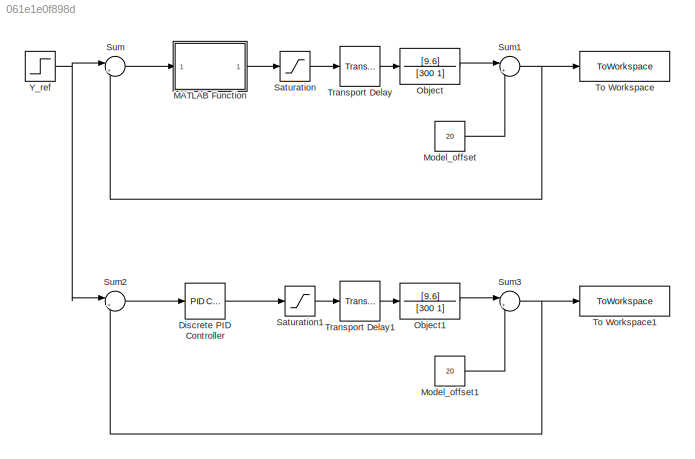
MODEL slx_061e1e0f898d
KIND model
CONFIG AbsTol = auto
CONFIG EnableMultiTasking = off
CONFIG FixedStep = auto
CONFIG MaxStep = auto
CONFIG MinStep = auto
CONFIG RelTol = 1e-3
CONFIG SampleTimeConstraint = Unconstrained
CONFIG SolverName = VariableStepAuto
CONFIG StartTime = 0.0
CONFIG StopTime = 140
BLOCK [Reference] Discrete PID Controller  REF=slpidlib/PID Controller
  LibrarySourceBlock = simulink/Discrete/Discrete PID Controller
  SourceBlock = slpidlib/PID Controller
  SourceType = PID 1dof
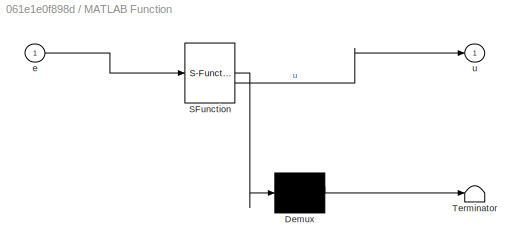
BLOCK [SubSystem] MATLAB Function
  ErrorFcn = Stateflow.Translate.translate
  LibrarySourceBlock = simulink/User-Defined\nFunctions/MATLAB Function
  PermitHierarchicalResolution = ExplicitOnly
  SFBlockType = MATLAB Function
  TreatAsAtomicUnit = on
BLOCK [Demux] MATLAB Function/ Demux 
  Outputs = 1
BLOCK [S-Function] MATLAB Function/ SFunction 
  EnableBusSupport = on
  FunctionName = sf_sfun
  PortCounts = [1 2]
  SFcnIsStateOwnerBlock = off
  SFunctionDeploymentMode = off
  Tag = Stateflow S-Function 2
BLOCK [Terminator] MATLAB Function/ Terminator 
BLOCK [Inport] MATLAB Function/e
BLOCK [Outport] MATLAB Function/u
BLOCK [Constant] Model_offset
  Value = 20
BLOCK [Constant] Model_offset1
  Value = 20
BLOCK [TransferFcn] Object
  Denominator = [300 1]
  Numerator = [9.6]
BLOCK [TransferFcn] Object1
  Denominator = [300 1]
  Numerator = [9.6]
BLOCK [Saturate] Saturation
  LowerLimit = 0
  UpperLimit = 20
BLOCK [Saturate] Saturation1
  LowerLimit = 0
  UpperLimit = 20
BLOCK [Sum] Sum
  Inputs = |+-
BLOCK [Sum] Sum1
  Inputs = |++
BLOCK [Sum] Sum2
  Inputs = |+-
BLOCK [Sum] Sum3
  Inputs = |++
BLOCK [ToWorkspace] To Workspace
  FixptAsFi = on
  MaxDataPoints = inf
  SampleTime = -1
  SaveFormat = Timeseries
  VariableName = simout
BLOCK [ToWorkspace] To Workspace1
  FixptAsFi = on
  MaxDataPoints = inf
  SampleTime = -1
  SaveFormat = Timeseries
  VariableName = simout1
BLOCK [TransportDelay] Transport Delay
  DelayTime = 10
BLOCK [TransportDelay] Transport Delay1
  DelayTime = 10
BLOCK [Step] Y_ref
  After = 26
  SampleTime = 0
  Time = 0
LINE Discrete PID Controller:1 -> Saturation1:1
LINE MATLAB Function:1 -> Saturation:1
LINE Model_offset1:1 -> Sum3:2
LINE Model_offset:1 -> Sum1:2
LINE Object1:1 -> Sum3:1
LINE Object:1 -> Sum1:1
LINE Saturation1:1 -> Transport Delay1:1
LINE Saturation:1 -> Transport Delay:1
NET Sum1:1 -> Sum:2, To Workspace:1
LINE Sum2:1 -> Discrete PID Controller:1
NET Sum3:1 -> Sum2:2, To Workspace1:1
LINE Sum:1 -> MATLAB Function:1
LINE Transport Delay1:1 -> Object1:1
LINE Transport Delay:1 -> Object:1
NET Y_ref:1 -> Sum2:1, Sum:1
note: NET lines group one-source signal fan-out (src -> all destinations, sorted); 1:1 wires keep LINE
CHART MATLAB Function states=1 transitions=1
  STATE_LABEL 'eML_blk_kernel()'
  STATE_LABEL 'SCRIPT:\nfunction u = sm_pid(e)\n\npersistent prev_e;\nif isempty(prev_e)\n    prev_e = 0;\nend\n\npersistent reg_i;\nif isempty(reg_i)\n    reg_i = 0;\nend\n\n% nastawy regulatora\nTp = 1;\nK_P = 1.5625;\nK_I = 0.005;\nK_D = 0;\n\nreg_p = e;\nreg_i = reg_i + e * Tp;\nreg_d = (e - prev_e) / Tp;\nprev_e = e;\n\nu = K_P * reg_p + K_I * reg_i + K_D * reg_d;\nif u > 40\n    reg_i = 0;\n    u = 40;\nend\nend'
CHART  states=0 transitions=0
